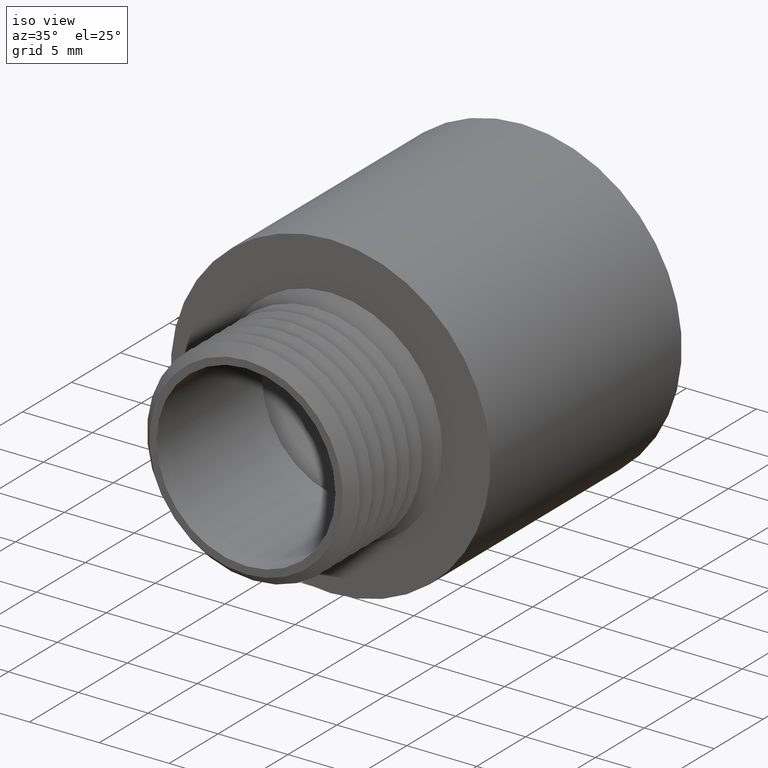
[diagram: clean part render]
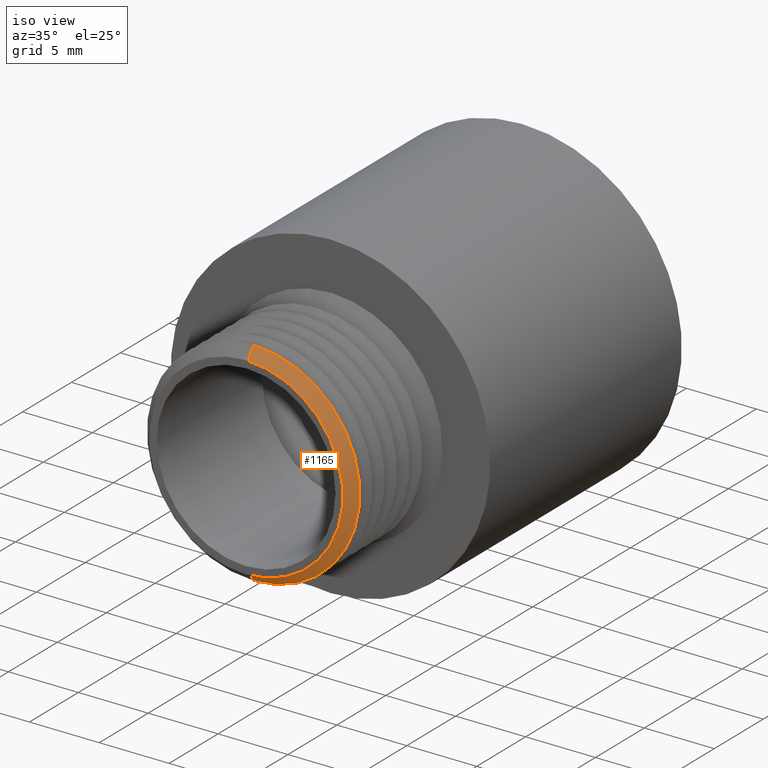
[diagram: same view with one face highlighted and labeled with its STEP entity id]
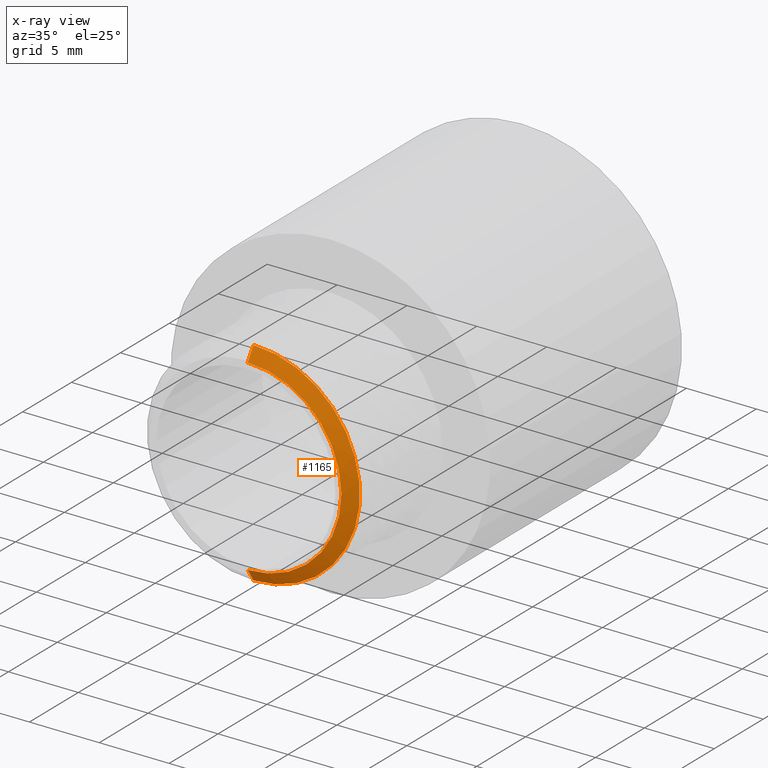
[diagram: x-ray of the same camera — body ghosted, the highlighted face saturated]
A machine part, iso view. The second image highlights one B-rep face of the part: STEP entity #1165.
The next image is the same camera in x-ray: the body ghosted, the highlighted face saturated — about 0% of this face is hidden behind the body in this view.
In plain terms, the highlighted conical surface has half-angle 56.5 deg.
Its self-contained STEP definition (entity closure, byte-faithful):
#126 = ORIENTED_EDGE ( 'NONE', *, *, #1172, .F. ) ;
#250 = ORIENTED_EDGE ( 'NONE', *, *, #251, .T. ) ;
#251 = EDGE_CURVE ( 'NONE', #1168, #252, #946, .T. ) ;
#252 = VERTEX_POINT ( 'NONE', #1005 ) ;
#253 = ORIENTED_EDGE ( 'NONE', *, *, #254, .F. ) ;
#254 = EDGE_CURVE ( 'NONE', #255, #252, #1004, .T. ) ;
#255 = VERTEX_POINT ( 'NONE', #999 ) ;
#256 = ORIENTED_EDGE ( 'NONE', *, *, #257, .F. ) ;
#257 = EDGE_CURVE ( 'NONE', #1160, #255, #998, .T. ) ;
#945 = CARTESIAN_POINT ( 'NONE',  ( 3.234300388511827800E-017, 0.006310467686671331100, -0.2641006689245971600 ) ) ;
#946 = LINE ( 'NONE', #945, #1007 ) ;
#995 = DIRECTION ( 'NONE',  ( 0.0000000000000000000, 0.5519369853120598100, 0.8338858220671671000 ) ) ;
#996 = VECTOR ( 'NONE', #995, 39.37007874015748100 ) ;
#997 = CARTESIAN_POINT ( 'NONE',  ( 0.0000000000000000000, 0.006310467686671331100, 0.2641006689245971600 ) ) ;
#998 = LINE ( 'NONE', #997, #996 ) ;
#999 = CARTESIAN_POINT ( 'NONE',  ( 3.671098097869636100E-017, 0.02991809865329595600, 0.2997679086268463200 ) ) ;
#1000 = DIRECTION ( 'NONE',  ( 0.0000000000000000000, 0.0000000000000000000, 1.000000000000000000 ) ) ;
#1001 = DIRECTION ( 'NONE',  ( 0.0000000000000000000, 1.000000000000000000, 0.0000000000000000000 ) ) ;
#1002 = CARTESIAN_POINT ( 'NONE',  ( 0.0000000000000000000, 0.02991809865329595600, 0.0000000000000000000 ) ) ;
#1003 = AXIS2_PLACEMENT_3D ( 'NONE', #1002, #1001, #1000 ) ;
#1004 = CIRCLE ( 'NONE', #1003, 0.2997679086268463200 ) ;
#1005 = CARTESIAN_POINT ( 'NONE',  ( 0.0000000000000000000, 0.02991809865329595600, -0.2997679086268463200 ) ) ;
#1006 = DIRECTION ( 'NONE',  ( 1.021215602848915400E-016, 0.5519369853120598100, -0.8338858220671671000 ) ) ;
#1007 = VECTOR ( 'NONE', #1006, 39.37007874015748100 ) ;
#1138 = EDGE_LOOP ( 'NONE', ( #126, #250, #253, #256 ) ) ;
#1160 = VERTEX_POINT ( 'NONE', #1736 ) ;
#1165 = ADVANCED_FACE ( 'NONE', ( #1725 ), #1723, .T. ) ;
#1168 = VERTEX_POINT ( 'NONE', #1724 ) ;
#1172 = EDGE_CURVE ( 'NONE', #1168, #1160, #1714, .T. ) ;
#1710 = DIRECTION ( 'NONE',  ( 0.0000000000000000000, 0.0000000000000000000, -1.000000000000000000 ) ) ;
#1711 = DIRECTION ( 'NONE',  ( -0.0000000000000000000, -1.000000000000000000, -0.0000000000000000000 ) ) ;
#1712 = CARTESIAN_POINT ( 'NONE',  ( 0.0000000000000000000, 0.006310467686671331100, 0.0000000000000000000 ) ) ;
#1713 = AXIS2_PLACEMENT_3D ( 'NONE', #1712, #1711, #1710 ) ;
#1714 = CIRCLE ( 'NONE', #1713, 0.2641006689245971600 ) ;
#1719 = DIRECTION ( 'NONE',  ( 0.0000000000000000000, 0.0000000000000000000, 1.000000000000000000 ) ) ;
#1720 = DIRECTION ( 'NONE',  ( 0.0000000000000000000, 1.000000000000000000, 0.0000000000000000000 ) ) ;
#1721 = CARTESIAN_POINT ( 'NONE',  ( 0.0000000000000000000, 0.006310467686671331100, 0.0000000000000000000 ) ) ;
#1722 = AXIS2_PLACEMENT_3D ( 'NONE', #1721, #1720, #1719 ) ;
#1723 = CONICAL_SURFACE ( 'NONE', #1722, 0.2641006689245971600, 0.9861110273767942400 ) ;
#1724 = CARTESIAN_POINT ( 'NONE',  ( 3.452699243190732300E-017, 0.006310467686671331100, -0.2641006689245971600 ) ) ;
#1725 = FACE_OUTER_BOUND ( 'NONE', #1138, .T. ) ;
#1736 = CARTESIAN_POINT ( 'NONE',  ( 0.0000000000000000000, 0.006310467686671331100, 0.2641006689245971600 ) ) ;